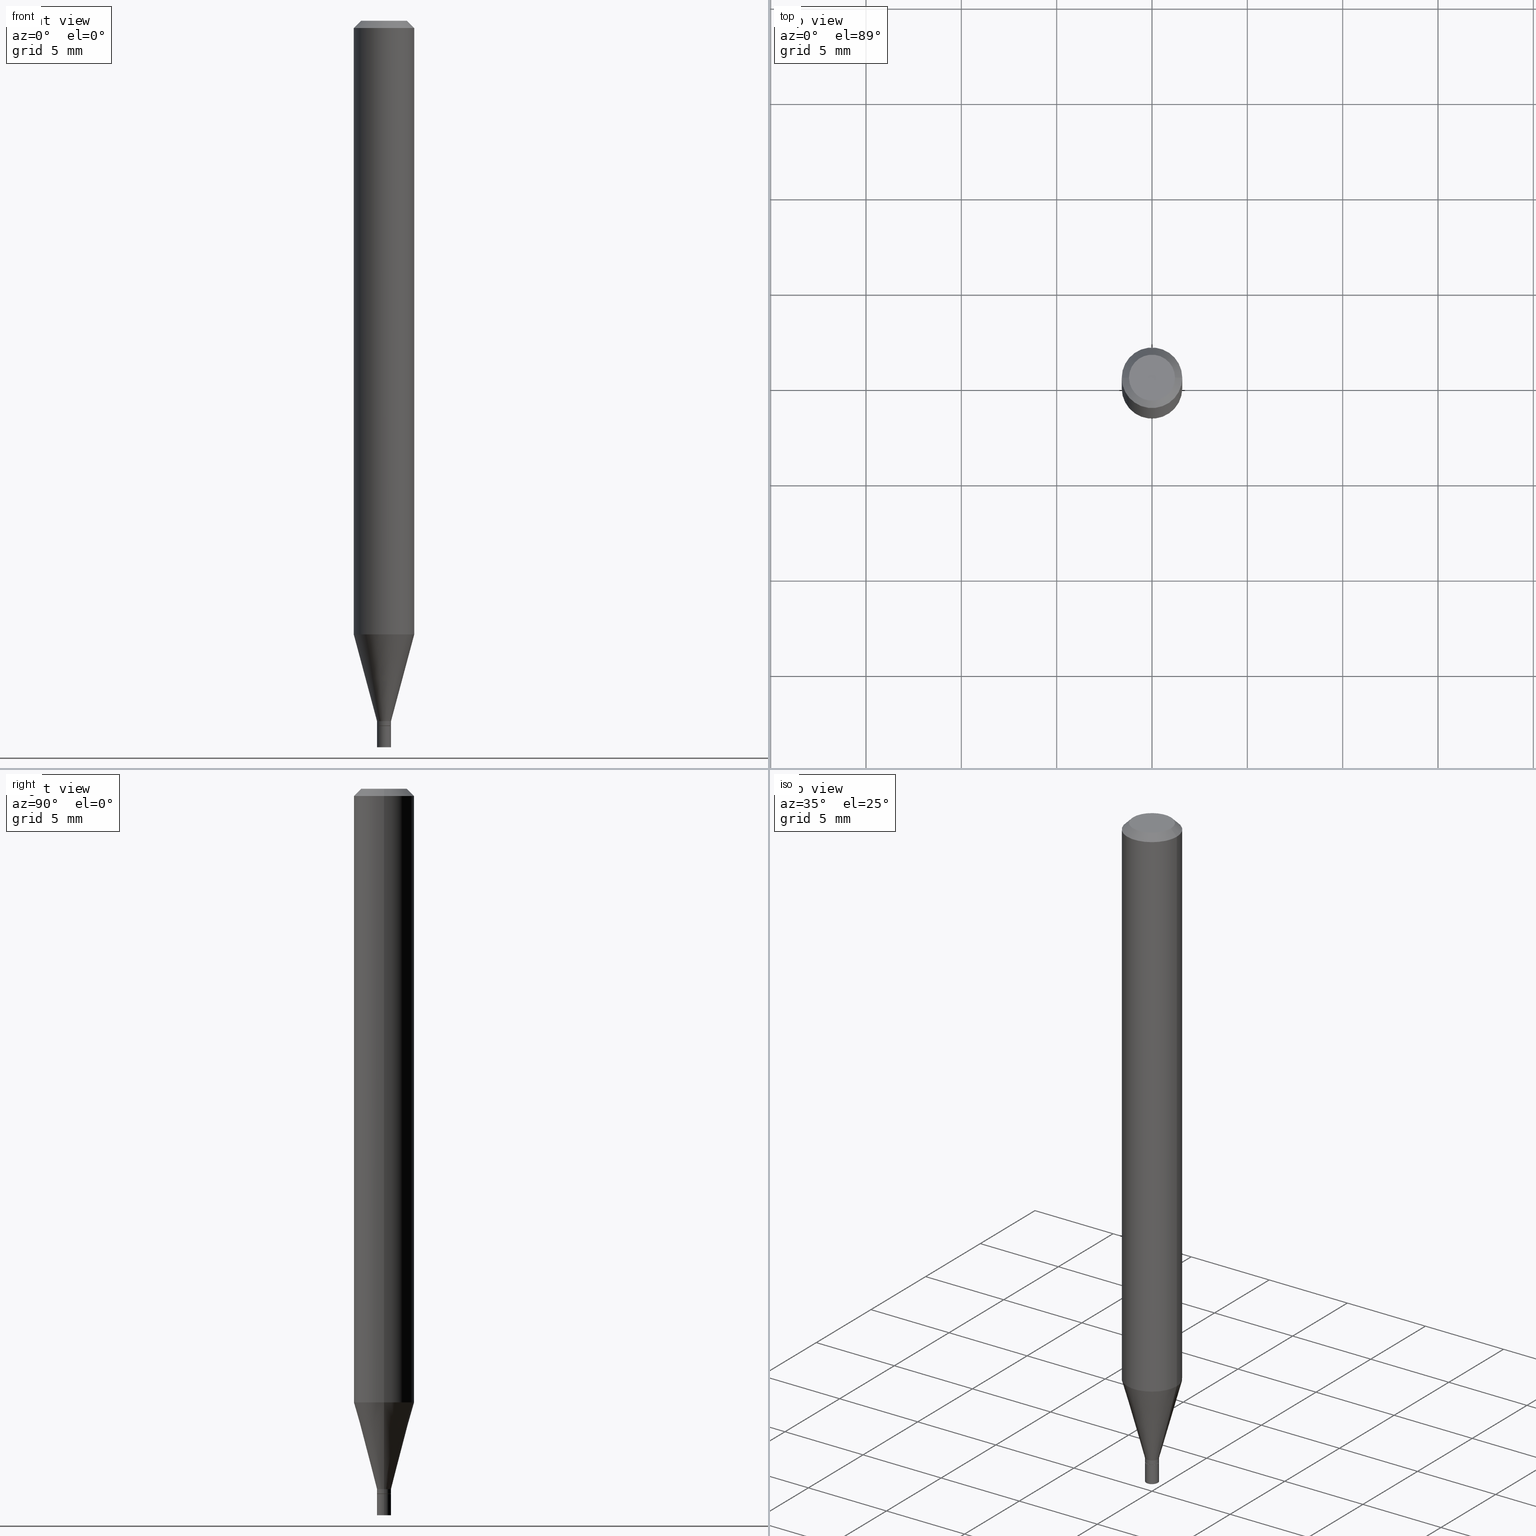
[diagram: canonical four-view strip — front | top / right | iso, engineering-drawing reading convention]
A machine part, canonical four-view strip (front | top / right | iso — engineering-drawing reading convention). The complete STEP part file that produces these views, byte-faithful:
ISO-10303-21;
HEADER;
FILE_DESCRIPTION (( 'STEP AP203' ),
    '1' );
FILE_NAME ('02225.STEP',
    '2024-03-18T19:55:15',
    ( '' ),
    ( '' ),
    'SwSTEP 2.0',
    'SolidWorks 2023',
    '' );
FILE_SCHEMA (( 'CONFIG_CONTROL_DESIGN' ));
ENDSEC;

DATA;
#1 = EDGE_CURVE ( 'NONE', #181, #290, #130, .T. ) ;
#2 = FACE_OUTER_BOUND ( 'NONE', #434, .T. ) ;
#3 = ORIENTED_EDGE ( 'NONE', *, *, #395, .T. ) ;
#4 = VECTOR ( 'NONE', #201, 39.37007874015748143 ) ;
#5 = AXIS2_PLACEMENT_3D ( 'NONE', #179, #109, #399 ) ;
#6 = DIRECTION ( 'NONE',  ( 2.445468806185136597E-29, -3.491481338843145583E-15, -1.000000000000000000 ) ) ;
#7 = EDGE_CURVE ( 'NONE', #151, #396, #264, .T. ) ;
#8 = ORIENTED_EDGE ( 'NONE', *, *, #374, .T. ) ;
#9 = ORIENTED_EDGE ( 'NONE', *, *, #403, .F. ) ;
#10 = CLOSED_SHELL ( 'NONE', ( #262, #256, #313, #371, #184, #210, #101, #38, #50, #293, #15, #430 ) ) ;
#11 = PERSON_AND_ORGANIZATION_ROLE ( 'design_owner' ) ;
#12 = CC_DESIGN_APPROVAL ( #324, ( #415 ) ) ;
#13 = VERTEX_POINT ( 'NONE', #315 ) ;
#14 = EDGE_LOOP ( 'NONE', ( #44, #155, #292, #115 ) ) ;
#15 = ADVANCED_FACE ( 'NONE', ( #37 ), #333, .T. ) ;
#16 = ORIENTED_EDGE ( 'NONE', *, *, #147, .F. ) ;
#17 = VECTOR ( 'NONE', #73, 39.37007874015748143 ) ;
#18 = EDGE_CURVE ( 'NONE', #13, #294, #223, .T. ) ;
#19 = DIRECTION ( 'NONE',  ( 1.000000000000000000, -6.982962677686262766E-15, 0.000000000000000000 ) ) ;
#20 = DIRECTION ( 'NONE',  ( -0.7071067811865542341, 2.468850131082328058E-15, -0.7071067811865405783 ) ) ;
#21 = DIRECTION ( 'NONE',  ( -2.445468806185136877E-29, 3.491481338843145188E-15, 1.000000000000000000 ) ) ;
#22 = CARTESIAN_POINT ( 'NONE',  ( 3.668203209277705088E-31, -5.237222008264718399E-17, -0.01499999999999999944 ) ) ;
#23 = VECTOR ( 'NONE', #27, 39.37007874015748143 ) ;
#24 = CIRCLE ( 'NONE', #150, 0.01449999999999992441 ) ;
#25 = FACE_OUTER_BOUND ( 'NONE', #422, .T. ) ;
#26 = DIRECTION ( 'NONE',  ( 1.000000000000000000, -6.982962677686269077E-15, 0.000000000000000000 ) ) ;
#27 = DIRECTION ( 'NONE',  ( -0.7071067811865642261, 7.493145998870414114E-15, 0.7071067811865309194 ) ) ;
#28 = ORIENTED_EDGE ( 'NONE', *, *, #384, .T. ) ;
#29 = FACE_OUTER_BOUND ( 'NONE', #402, .T. ) ;
#30 = ORIENTED_EDGE ( 'NONE', *, *, #178, .T. ) ;
#31 = ORIENTED_EDGE ( 'NONE', *, *, #53, .T. ) ;
#32 = CARTESIAN_POINT ( 'NONE',  ( 3.536147893743707559E-29, -5.048682015967188692E-15, -1.446000000000000174 ) ) ;
#33 = DIRECTION ( 'NONE',  ( 1.000000000000000000, -6.982962677686267499E-15, 4.852736867747366768E-29 ) ) ;
#34 = AXIS2_PLACEMENT_3D ( 'NONE', #32, #302, #230 ) ;
#35 = CARTESIAN_POINT ( 'NONE',  ( 3.560602581805559105E-29, -5.083596829355621130E-15, -1.456000000000000183 ) ) ;
#36 = AXIS2_PLACEMENT_3D ( 'NONE', #62, #136, #236 ) ;
#37 = FACE_OUTER_BOUND ( 'NONE', #14, .T. ) ;
#38 = ADVANCED_FACE ( 'NONE', ( #106 ), #118, .T. ) ;
#39 = CARTESIAN_POINT ( 'NONE',  ( 0.000000000000000000, 0.000000000000000000, 0.000000000000000000 ) ) ;
#40 = VERTEX_POINT ( 'NONE', #387 ) ;
#41 = EDGE_CURVE ( 'NONE', #141, #320, #372, .T. ) ;
#42 = VECTOR ( 'NONE', #90, 39.37007874015748143 ) ;
#43 = CC_DESIGN_APPROVAL ( #113, ( #411 ) ) ;
#44 = ORIENTED_EDGE ( 'NONE', *, *, #122, .F. ) ;
#45 = PERSON_AND_ORGANIZATION ( #138, #86 ) ;
#46 = ORIENTED_EDGE ( 'NONE', *, *, #74, .F. ) ;
#47 = DIRECTION ( 'NONE',  ( -1.000000000000000000, 6.982962677686265922E-15, -4.876176775795935793E-29 ) ) ;
#48 = DATE_AND_TIME ( #121, #180 ) ;
#49 = EDGE_LOOP ( 'NONE', ( #361, #80, #437, #219 ) ) ;
#50 = ADVANCED_FACE ( 'NONE', ( #71 ), #76, .F. ) ;
#51 = ORIENTED_EDGE ( 'NONE', *, *, #395, .F. ) ;
#52 = ORIENTED_EDGE ( 'NONE', *, *, #213, .T. ) ;
#53 = EDGE_CURVE ( 'NONE', #40, #117, #134, .T. ) ;
#54 = PRODUCT_DEFINITION_SHAPE ( 'NONE', 'NONE',  #65 ) ;
#55 = PERSON_AND_ORGANIZATION ( #138, #86 ) ;
#56 = CIRCLE ( 'NONE', #392, 0.01449999999999992441 ) ;
#57 = CIRCLE ( 'NONE', #319, 0.01449999999999992441 ) ;
#58 = CARTESIAN_POINT ( 'NONE',  ( 3.098070429759336383E-29, -4.423223499955610282E-15, -1.266861561236694023 ) ) ;
#59 = DIRECTION ( 'NONE',  ( 1.000000000000000000, -6.982962677686269077E-15, 0.000000000000000000 ) ) ;
#60 = DIRECTION ( 'NONE',  ( 1.000000000000000000, -6.982962677686299054E-15, 0.000000000000000000 ) ) ;
#61 = DIRECTION ( 'NONE',  ( 1.000000000000000000, -6.982962677686262766E-15, 0.000000000000000000 ) ) ;
#62 = CARTESIAN_POINT ( 'NONE',  ( 3.560602581805559105E-29, -5.083596829355621130E-15, -1.456000000000000183 ) ) ;
#63 = CARTESIAN_POINT ( 'NONE',  ( -0.01400000000000000203, -4.984120846349207015E-15, -1.456000000000000183 ) ) ;
#64 = AXIS2_PLACEMENT_3D ( 'NONE', #247, #153, #19 ) ;
#65 = PRODUCT_DEFINITION ( 'UNKNOWN', '', #411, #304 ) ;
#66 = AXIS2_PLACEMENT_3D ( 'NONE', #98, #69, #388 ) ;
#67 = CARTESIAN_POINT ( 'NONE',  ( 0.01449999999999992441, -1.012529588264503378E-16, 7.070456324904069450E-31 ) ) ;
#68 = DIRECTION ( 'NONE',  ( -2.445468806185136597E-29, 3.491481338843145583E-15, 1.000000000000000000 ) ) ;
#69 = DIRECTION ( 'NONE',  ( -2.445468806185136597E-29, 3.491481338843145583E-15, 1.000000000000000000 ) ) ;
#70 = DIRECTION ( 'NONE',  ( 1.000000000000000000, -6.982962677686266711E-15, 0.000000000000000000 ) ) ;
#71 = FACE_OUTER_BOUND ( 'NONE', #407, .T. ) ;
#72 = FACE_OUTER_BOUND ( 'NONE', #191, .T. ) ;
#73 = DIRECTION ( 'NONE',  ( 0.2588190451025211281, 1.565188264969623940E-15, 0.9659258262890682012 ) ) ;
#74 = EDGE_CURVE ( 'NONE', #185, #331, #460, .T. ) ;
#75 = DIRECTION ( 'NONE',  ( 0.000000000000000000, 0.000000000000000000, 1.000000000000000000 ) ) ;
#76 = PLANE ( 'NONE',  #224 ) ;
#77 = CYLINDRICAL_SURFACE ( 'NONE', #209, 0.01450000000000000074 ) ;
#78 = EDGE_LOOP ( 'NONE', ( #31, #441, #51, #281 ) ) ;
#79 = AXIS2_PLACEMENT_3D ( 'NONE', #58, #309, #193 ) ;
#80 = ORIENTED_EDGE ( 'NONE', *, *, #449, .T. ) ;
#81 = PLANE ( 'NONE',  #260 ) ;
#82 = APPROVAL_DATE_TIME ( #253, #113 ) ;
#83 = EDGE_LOOP ( 'NONE', ( #187, #405 ) ) ;
#84 = EDGE_CURVE ( 'NONE', #151, #331, #303, .T. ) ;
#85 = EDGE_LOOP ( 'NONE', ( #329, #321, #326, #241 ) ) ;
#86 = ORGANIZATION ( 'UNSPECIFIED', 'UNSPECIFIED', '' ) ;
#87 = ORIENTED_EDGE ( 'NONE', *, *, #213, .F. ) ;
#88 = PERSON_AND_ORGANIZATION_ROLE ( 'creator' ) ;
#89 = LOCAL_TIME ( 15, 55, 15.00000000000000000, #119 ) ;
#90 = DIRECTION ( 'NONE',  ( -2.445468806185136877E-29, 3.491481338843145188E-15, 1.000000000000000000 ) ) ;
#91 = CARTESIAN_POINT ( 'NONE',  ( -0.01400000000000000203, -4.981471619175095814E-15, -1.456000000000000183 ) ) ;
#92 = DIRECTION ( 'NONE',  ( 1.000000000000000000, -6.982962677686266711E-15, 4.876176775795935793E-29 ) ) ;
#93 = EDGE_CURVE ( 'NONE', #245, #457, #259, .T. ) ;
#94 = CARTESIAN_POINT ( 'NONE',  ( 3.668203209277705088E-31, -5.237222008264718399E-17, -0.01499999999999999944 ) ) ;
#95 = DIRECTION ( 'NONE',  ( 1.000000000000000000, -6.982962677686266711E-15, 4.876176775795935793E-29 ) ) ;
#96 = CARTESIAN_POINT ( 'NONE',  ( 0.01400000000000000203, -5.181358306843228485E-15, -1.456000000000000183 ) ) ;
#97 = VECTOR ( 'NONE', #165, 39.37007874015748143 ) ;
#98 = CARTESIAN_POINT ( 'NONE',  ( 3.560602581805559105E-29, -5.083596829355621130E-15, -1.456000000000000183 ) ) ;
#99 = DIRECTION ( 'NONE',  ( -2.445468806185136597E-29, 3.491481338843145583E-15, 1.000000000000000000 ) ) ;
#100 = DIRECTION ( 'NONE',  ( 1.000000000000000000, -6.982962677686269077E-15, 0.000000000000000000 ) ) ;
#101 = ADVANCED_FACE ( 'NONE', ( #459 ), #128, .T. ) ;
#102 = CARTESIAN_POINT ( 'NONE',  ( 0.01400000000000000203, -5.181358306843228485E-15, -1.456000000000000183 ) ) ;
#103 = CARTESIAN_POINT ( 'NONE',  ( -0.01449999999999992441, -4.945653319281974468E-15, -1.446000000000000174 ) ) ;
#104 = CARTESIAN_POINT ( 'NONE',  ( 0.04749999999999999362, -4.035134999187584047E-16, -2.863788329398937336E-16 ) ) ;
#105 = CARTESIAN_POINT ( 'NONE',  ( -0.06250000000000000000, -3.979134290105546877E-15, -1.266861561236694023 ) ) ;
#106 = FACE_OUTER_BOUND ( 'NONE', #162, .T. ) ;
#107 = AXIS2_PLACEMENT_3D ( 'NONE', #340, #376, #61 ) ;
#108 = ORIENTED_EDGE ( 'NONE', *, *, #93, .T. ) ;
#109 = DIRECTION ( 'NONE',  ( -2.438088387897960049E-29, 3.491481338843145188E-15, 1.000000000000000000 ) ) ;
#110 = ORIENTED_EDGE ( 'NONE', *, *, #154, .T. ) ;
#111 = CALENDAR_DATE ( 2024, 18, 3 ) ;
#112 = ORIENTED_EDGE ( 'NONE', *, *, #338, .F. ) ;
#113 = APPROVAL ( #440, 'UNSPECIFIED' ) ;
#114 = APPROVAL_DATE_TIME ( #327, #324 ) ;
#115 = ORIENTED_EDGE ( 'NONE', *, *, #384, .F. ) ;
#116 = PERSON_AND_ORGANIZATION ( #138, #86 ) ;
#117 = VERTEX_POINT ( 'NONE', #419 ) ;
#118 = CONICAL_SURFACE ( 'NONE', #400, 0.06250000000000000000, 0.7853981633974579379 ) ;
#119 = COORDINATED_UNIVERSAL_TIME_OFFSET ( 5, 0, .BEHIND. ) ;
#120 = AXIS2_PLACEMENT_3D ( 'NONE', #418, #389, #428 ) ;
#121 = CALENDAR_DATE ( 2024, 18, 3 ) ;
#122 = EDGE_CURVE ( 'NONE', #254, #190, #137, .T. ) ;
#123 = APPROVAL_ROLE ( '' ) ;
#124 = PRODUCT ( '02225', '02225', '', ( #203 ) ) ;
#125 = DIRECTION ( 'NONE',  ( -2.445468806185136597E-29, 3.491481338843145583E-15, 1.000000000000000000 ) ) ;
#126 = APPROVAL_PERSON_ORGANIZATION ( #330, #226, #443 ) ;
#127 = CARTESIAN_POINT ( 'NONE',  ( 3.536147893743707559E-29, -5.048682015967188692E-15, -1.446000000000000174 ) ) ;
#128 = CYLINDRICAL_SURFACE ( 'NONE', #353, 0.06250000000000000000 ) ;
#129 = CARTESIAN_POINT ( 'NONE',  ( -0.06250000000000000000, -1.793708650169066262E-15, -0.01499999999999999944 ) ) ;
#130 = LINE ( 'NONE', #96, #272 ) ;
#131 = CARTESIAN_POINT ( 'NONE',  ( 0.000000000000000000, 0.000000000000000000, 0.000000000000000000 ) ) ;
#132 = ORIENTED_EDGE ( 'NONE', *, *, #364, .F. ) ;
#133 = EDGE_CURVE ( 'NONE', #294, #13, #56, .T. ) ;
#134 = CIRCLE ( 'NONE', #410, 0.01450000000000000074 ) ;
#135 = CARTESIAN_POINT ( 'NONE',  ( 0.000000000000000000, 0.000000000000000000, 0.000000000000000000 ) ) ;
#136 = DIRECTION ( 'NONE',  ( -2.445468806185136597E-29, 3.491481338843145583E-15, 1.000000000000000000 ) ) ;
#137 = LINE ( 'NONE', #63, #23 ) ;
#138 = PERSON ( 'UNSPECIFIED', 'UNSPECIFIED', 'UNSPECIFIED', ('UNSPECIFIED'), ('UNSPECIFIED'), ('UNSPECIFIED') ) ;
#139 = PERSON_AND_ORGANIZATION ( #138, #86 ) ;
#140 = ORIENTED_EDGE ( 'NONE', *, *, #160, .F. ) ;
#141 = VERTEX_POINT ( 'NONE', #104 ) ;
#142 = CIRCLE ( 'NONE', #359, 0.04749999999999999362 ) ;
#143 = LOCAL_TIME ( 15, 55, 15.00000000000000000, #448 ) ;
#144 = CC_DESIGN_PERSON_AND_ORGANIZATION_ASSIGNMENT ( #55, #88, ( #65 ) ) ;
#145 = ORIENTED_EDGE ( 'NONE', *, *, #18, .F. ) ;
#146 = CALENDAR_DATE ( 2024, 18, 3 ) ;
#147 = EDGE_CURVE ( 'NONE', #320, #141, #142, .T. ) ;
#148 = ORIENTED_EDGE ( 'NONE', *, *, #228, .F. ) ;
#149 = VECTOR ( 'NONE', #161, 39.37007874015748143 ) ;
#150 = AXIS2_PLACEMENT_3D ( 'NONE', #215, #220, #26 ) ;
#151 = VERTEX_POINT ( 'NONE', #105 ) ;
#152 = ORIENTED_EDGE ( 'NONE', *, *, #41, .T. ) ;
#153 = DIRECTION ( 'NONE',  ( -2.445468806185136597E-29, 3.491481338843145583E-15, 1.000000000000000000 ) ) ;
#154 = EDGE_CURVE ( 'NONE', #181, #254, #450, .T. ) ;
#155 = ORIENTED_EDGE ( 'NONE', *, *, #269, .T. ) ;
#156 = CONICAL_SURFACE ( 'NONE', #296, 0.01449999999999992441, 0.2617993877991497964 ) ;
#157 = CIRCLE ( 'NONE', #36, 0.01450000000000000074 ) ;
#158 = DIMENSIONAL_EXPONENTS ( 1.000000000000000000, 0.000000000000000000, 0.000000000000000000, 0.000000000000000000, 0.000000000000000000, 0.000000000000000000, 0.000000000000000000 ) ;
#159 = CARTESIAN_POINT ( 'NONE',  ( 0.06250000000000000000, -4.888073874380388472E-16, -0.01499999999999999944 ) ) ;
#160 = EDGE_CURVE ( 'NONE', #320, #331, #379, .T. ) ;
#161 = DIRECTION ( 'NONE',  ( -2.445468806185136877E-29, 3.491481338843145188E-15, 1.000000000000000000 ) ) ;
#162 = EDGE_LOOP ( 'NONE', ( #258, #16, #362, #8 ) ) ;
#163 = AXIS2_PLACEMENT_3D ( 'NONE', #425, #381, #199 ) ;
#164 = FACE_OUTER_BOUND ( 'NONE', #337, .T. ) ;
#165 = DIRECTION ( 'NONE',  ( -2.445468806185136877E-29, 3.491481338843145188E-15, 1.000000000000000000 ) ) ;
#166 = CARTESIAN_POINT ( 'NONE',  ( 3.098070429759336383E-29, -4.423223499955610282E-15, -1.266861561236694023 ) ) ;
#167 = APPLICATION_CONTEXT ( 'configuration controlled 3d designs of mechanical parts and assemblies' ) ;
#168 =( NAMED_UNIT ( * ) SI_UNIT ( $, .STERADIAN. ) SOLID_ANGLE_UNIT ( ) );
#169 = DIRECTION ( 'NONE',  ( -1.000000000000000000, 6.982962677686265922E-15, -4.876176775795935793E-29 ) ) ;
#170 = CARTESIAN_POINT ( 'NONE',  ( 3.316907271900976096E-16, 0.04749999999999999362, -3.090347800649974958E-16 ) ) ;
#171 = VECTOR ( 'NONE', #265, 39.37007874015748143 ) ;
#172 = VECTOR ( 'NONE', #21, 39.37007874015748143 ) ;
#173 = DIRECTION ( 'NONE',  ( -2.438088387897960049E-29, 3.491481338843145188E-15, 1.000000000000000000 ) ) ;
#174 = CARTESIAN_POINT ( 'NONE',  ( 3.559379847402467424E-29, -5.081851088686199626E-15, -1.455500000000000460 ) ) ;
#175 =( CONVERSION_BASED_UNIT ( 'INCH', #343 ) LENGTH_UNIT ( ) NAMED_UNIT ( #158 ) );
#176 = ORIENTED_EDGE ( 'NONE', *, *, #338, .T. ) ;
#177 = CARTESIAN_POINT ( 'NONE',  ( -0.01450000000000000074, 1.030286966852145322E-16, -7.132455880869613131E-31 ) ) ;
#178 = EDGE_CURVE ( 'NONE', #290, #294, #300, .T. ) ;
#179 = CARTESIAN_POINT ( 'NONE',  ( 3.576687321579069994E-29, -5.368277968210015545E-15, -1.500000000000000222 ) ) ;
#180 = LOCAL_TIME ( 15, 55, 15.00000000000000000, #323 ) ;
#181 = VERTEX_POINT ( 'NONE', #102 ) ;
#182 = PERSON_AND_ORGANIZATION_ROLE ( 'classification_officer' ) ;
#183 = FACE_OUTER_BOUND ( 'NONE', #439, .T. ) ;
#184 = ADVANCED_FACE ( 'NONE', ( #164 ), #156, .T. ) ;
#185 = VERTEX_POINT ( 'NONE', #159 ) ;
#186 = SECURITY_CLASSIFICATION_LEVEL ( 'unclassified' ) ;
#187 = ORIENTED_EDGE ( 'NONE', *, *, #53, .F. ) ;
#188 = AXIS2_PLACEMENT_3D ( 'NONE', #466, #237, #344 ) ;
#189 = CALENDAR_DATE ( 2024, 18, 3 ) ;
#190 = VERTEX_POINT ( 'NONE', #305 ) ;
#191 = EDGE_LOOP ( 'NONE', ( #249, #248 ) ) ;
#192 = DATE_AND_TIME ( #289, #143 ) ;
#193 = DIRECTION ( 'NONE',  ( 1.000000000000000000, -6.982962677686262766E-15, 0.000000000000000000 ) ) ;
#194 = EDGE_CURVE ( 'NONE', #40, #457, #263, .T. ) ;
#195 = DIRECTION ( 'NONE',  ( -2.445468806185136597E-29, 3.491481338843145583E-15, 1.000000000000000000 ) ) ;
#196 = DIRECTION ( 'NONE',  ( -2.445468806185136597E-29, 3.491481338843145583E-15, 1.000000000000000000 ) ) ;
#197 = VECTOR ( 'NONE', #243, 39.37007874015748143 ) ;
#198 = DIRECTION ( 'NONE',  ( -1.000000000000000000, 6.982962677686266711E-15, 0.000000000000000000 ) ) ;
#199 = DIRECTION ( 'NONE',  ( 1.000000000000000000, -6.982962677686266711E-15, 4.876176775795935793E-29 ) ) ;
#200 =( NAMED_UNIT ( * ) PLANE_ANGLE_UNIT ( ) SI_UNIT ( $, .RADIAN. ) );
#201 = DIRECTION ( 'NONE',  ( -2.445468806185136877E-29, 3.491481338843145188E-15, 1.000000000000000000 ) ) ;
#202 = LINE ( 'NONE', #268, #17 ) ;
#203 = MECHANICAL_CONTEXT ( 'NONE', #167, 'mechanical' ) ;
#204 = CARTESIAN_POINT ( 'NONE',  ( 0.000000000000000000, 0.000000000000000000, 0.000000000000000000 ) ) ;
#205 = CARTESIAN_POINT ( 'NONE',  ( 0.01449999999999992441, -5.183104047512649988E-15, -1.455500000000000460 ) ) ;
#206 = CARTESIAN_POINT ( 'NONE',  ( 0.06250000000000000000, -4.364351673553916694E-16, 3.047610484872459871E-30 ) ) ;
#207 = DIRECTION ( 'NONE',  ( 1.000000000000000000, 0.000000000000000000, 0.000000000000000000 ) ) ;
#208 = DIRECTION ( 'NONE',  ( 1.000000000000000000, -6.982962677686266711E-15, 4.876176775795935793E-29 ) ) ;
#209 = AXIS2_PLACEMENT_3D ( 'NONE', #421, #456, #95 ) ;
#210 = ADVANCED_FACE ( 'NONE', ( #29 ), #435, .T. ) ;
#211 = ORIENTED_EDGE ( 'NONE', *, *, #364, .T. ) ;
#212 = CIRCLE ( 'NONE', #461, 0.06250000000000000000 ) ;
#213 = EDGE_CURVE ( 'NONE', #190, #13, #238, .T. ) ;
#214 = ORIENTED_EDGE ( 'NONE', *, *, #18, .T. ) ;
#215 = CARTESIAN_POINT ( 'NONE',  ( 3.559379847402467424E-29, -5.081851088686199626E-15, -1.455500000000000460 ) ) ;
#216 = CARTESIAN_POINT ( 'NONE',  ( 1.012529588264864651E-16, 0.01449999999999491626, -1.456000000000000183 ) ) ;
#217 = ADVANCED_BREP_SHAPE_REPRESENTATION ( '02225', ( #398, #246, #229 ), #341 ) ;
#218 = PERSON_AND_ORGANIZATION ( #138, #86 ) ;
#219 = ORIENTED_EDGE ( 'NONE', *, *, #93, .F. ) ;
#220 = DIRECTION ( 'NONE',  ( -2.445468806185136597E-29, 3.491481338843145583E-15, 1.000000000000000000 ) ) ;
#221 = PERSON_AND_ORGANIZATION ( #138, #86 ) ;
#222 = EDGE_LOOP ( 'NONE', ( #110, #370, #132, #350 ) ) ;
#223 = CIRCLE ( 'NONE', #244, 0.01449999999999992441 ) ;
#224 = AXIS2_PLACEMENT_3D ( 'NONE', #170, #375, #169 ) ;
#225 = AXIS2_PLACEMENT_3D ( 'NONE', #131, #271, #385 ) ;
#226 = APPROVAL ( #328, 'UNSPECIFIED' ) ;
#227 = ORIENTED_EDGE ( 'NONE', *, *, #178, .F. ) ;
#228 = EDGE_CURVE ( 'NONE', #396, #151, #414, .T. ) ;
#229 = AXIS2_PLACEMENT_3D ( 'NONE', #426, #75, #207 ) ;
#230 = DIRECTION ( 'NONE',  ( 1.000000000000000000, -6.982962677686269077E-15, 0.000000000000000000 ) ) ;
#231 = FACE_OUTER_BOUND ( 'NONE', #222, .T. ) ;
#232 = DIRECTION ( 'NONE',  ( -2.445468806185136597E-29, 3.491481338843145583E-15, 1.000000000000000000 ) ) ;
#233 = CC_DESIGN_DATE_AND_TIME_ASSIGNMENT ( #322, #438, ( #415 ) ) ;
#234 = LOCAL_TIME ( 15, 55, 15.00000000000000000, #436 ) ;
#235 = CARTESIAN_POINT ( 'NONE',  ( 7.003305027062207074E-45, -9.998863510493265527E-31, -2.863788329398962481E-16 ) ) ;
#236 = DIRECTION ( 'NONE',  ( 1.000000000000000000, -6.982962677686299054E-15, 0.000000000000000000 ) ) ;
#237 = DIRECTION ( 'NONE',  ( -2.445468806185136597E-29, 3.491481338843145583E-15, 1.000000000000000000 ) ) ;
#238 = LINE ( 'NONE', #451, #171 ) ;
#239 = DIRECTION ( 'NONE',  ( -2.445468806185136597E-29, 3.491481338843145583E-15, 1.000000000000000000 ) ) ;
#240 = DIRECTION ( 'NONE',  ( 1.000000000000000000, -6.982962677686266711E-15, 0.000000000000000000 ) ) ;
#241 = ORIENTED_EDGE ( 'NONE', *, *, #374, .F. ) ;
#242 = PRODUCT_RELATED_PRODUCT_CATEGORY ( 'detail', '', ( #124 ) ) ;
#243 = DIRECTION ( 'NONE',  ( -0.2588190451025211281, 5.211531920934548675E-15, 0.9659258262890682012 ) ) ;
#244 = AXIS2_PLACEMENT_3D ( 'NONE', #429, #308, #270 ) ;
#245 = VERTEX_POINT ( 'NONE', #417 ) ;
#246 = MANIFOLD_SOLID_BREP ( 'Body-Move/Copy2[2]', #10 ) ;
#247 = CARTESIAN_POINT ( 'NONE',  ( 3.560602581805559105E-29, -5.083596829355621130E-15, -1.456000000000000183 ) ) ;
#248 = ORIENTED_EDGE ( 'NONE', *, *, #269, .F. ) ;
#249 = ORIENTED_EDGE ( 'NONE', *, *, #154, .F. ) ;
#250 = AXIS2_PLACEMENT_3D ( 'NONE', #267, #348, #464 ) ;
#251 = ORIENTED_EDGE ( 'NONE', *, *, #133, .F. ) ;
#252 = COORDINATED_UNIVERSAL_TIME_OFFSET ( 5, 0, .BEHIND. ) ;
#253 = DATE_AND_TIME ( #111, #234 ) ;
#254 = VERTEX_POINT ( 'NONE', #91 ) ;
#255 = ORIENTED_EDGE ( 'NONE', *, *, #74, .T. ) ;
#256 = ADVANCED_FACE ( 'NONE', ( #231 ), #334, .T. ) ;
#257 = APPLICATION_PROTOCOL_DEFINITION ( 'international standard', 'config_control_design', 1994, #355 ) ;
#258 = ORIENTED_EDGE ( 'NONE', *, *, #349, .F. ) ;
#259 = CIRCLE ( 'NONE', #250, 0.01450000000000000074 ) ;
#260 = AXIS2_PLACEMENT_3D ( 'NONE', #216, #363, #47 ) ;
#261 = PERSON_AND_ORGANIZATION_ROLE ( 'design_supplier' ) ;
#262 = ADVANCED_FACE ( 'NONE', ( #25 ), #454, .T. ) ;
#263 = LINE ( 'NONE', #345, #42 ) ;
#264 = CIRCLE ( 'NONE', #325, 0.06250000000000000000 ) ;
#265 = DIRECTION ( 'NONE',  ( -2.445468806185136877E-29, 3.491481338843145188E-15, 1.000000000000000000 ) ) ;
#266 = LINE ( 'NONE', #103, #197 ) ;
#267 = CARTESIAN_POINT ( 'NONE',  ( 3.560602581805559105E-29, -5.083596829355621130E-15, -1.456000000000000183 ) ) ;
#268 = CARTESIAN_POINT ( 'NONE',  ( 0.01449999999999992441, -5.149934974793639054E-15, -1.446000000000000174 ) ) ;
#269 = EDGE_CURVE ( 'NONE', #254, #181, #369, .T. ) ;
#270 = DIRECTION ( 'NONE',  ( 1.000000000000000000, -6.982962677686269077E-15, 0.000000000000000000 ) ) ;
#271 = DIRECTION ( 'NONE',  ( -2.445468806185136597E-29, 3.491481338843145583E-15, 1.000000000000000000 ) ) ;
#272 = VECTOR ( 'NONE', #378, 39.37007874015748143 ) ;
#273 = CIRCLE ( 'NONE', #120, 0.01450000000000000074 ) ;
#274 = ORIENTED_EDGE ( 'NONE', *, *, #147, .T. ) ;
#275 = CARTESIAN_POINT ( 'NONE',  ( -0.06250000000000000000, 3.840629472727444916E-16, -0.01499999999999999944 ) ) ;
#276 = FACE_OUTER_BOUND ( 'NONE', #282, .T. ) ;
#277 =( LENGTH_UNIT ( ) NAMED_UNIT ( * ) SI_UNIT ( $, .METRE. ) );
#278 = CARTESIAN_POINT ( 'NONE',  ( 3.536147893743707559E-29, -5.048682015967188692E-15, -1.446000000000000174 ) ) ;
#279 = CC_DESIGN_PERSON_AND_ORGANIZATION_ASSIGNMENT ( #139, #11, ( #124 ) ) ;
#280 = DIRECTION ( 'NONE',  ( 1.000000000000000000, -6.982962677686267499E-15, 4.852736867747366768E-29 ) ) ;
#281 = ORIENTED_EDGE ( 'NONE', *, *, #194, .F. ) ;
#282 = EDGE_LOOP ( 'NONE', ( #357, #295, #46, #446 ) ) ;
#283 = AXIS2_PLACEMENT_3D ( 'NONE', #235, #195, #33 ) ;
#284 = AXIS2_PLACEMENT_3D ( 'NONE', #135, #196, #92 ) ;
#285 = CC_DESIGN_DATE_AND_TIME_ASSIGNMENT ( #192, #406, ( #65 ) ) ;
#286 = DIRECTION ( 'NONE',  ( 1.000000000000000000, -6.982962677686265922E-15, 4.876176775795935793E-29 ) ) ;
#287 = EDGE_LOOP ( 'NONE', ( #87, #28, #30, #145 ) ) ;
#288 = SHAPE_DEFINITION_REPRESENTATION ( #54, #217 ) ;
#289 = CALENDAR_DATE ( 2024, 18, 3 ) ;
#290 = VERTEX_POINT ( 'NONE', #205 ) ;
#291 = APPROVAL_PERSON_ORGANIZATION ( #298, #324, #123 ) ;
#292 = ORIENTED_EDGE ( 'NONE', *, *, #1, .T. ) ;
#293 = ADVANCED_FACE ( 'NONE', ( #72 ), #351, .F. ) ;
#294 = VERTEX_POINT ( 'NONE', #367 ) ;
#295 = ORIENTED_EDGE ( 'NONE', *, *, #84, .T. ) ;
#296 = AXIS2_PLACEMENT_3D ( 'NONE', #127, #125, #59 ) ;
#297 = LOCAL_TIME ( 15, 55, 15.00000000000000000, #252 ) ;
#298 = PERSON_AND_ORGANIZATION ( #138, #86 ) ;
#299 = ADVANCED_FACE ( 'NONE', ( #432 ), #404, .F. ) ;
#300 = LINE ( 'NONE', #67, #149 ) ;
#301 = DIRECTION ( 'NONE',  ( -1.000000000000000000, 6.982962677686266711E-15, 0.000000000000000000 ) ) ;
#302 = DIRECTION ( 'NONE',  ( -2.445468806185136597E-29, 3.491481338843145583E-15, 1.000000000000000000 ) ) ;
#303 = LINE ( 'NONE', #453, #4 ) ;
#304 = DESIGN_CONTEXT ( 'detailed design', #355, 'design' ) ;
#305 = CARTESIAN_POINT ( 'NONE',  ( -0.01449999999999992441, -4.978822392000985402E-15, -1.455500000000000460 ) ) ;
#306 = ADVANCED_FACE ( 'NONE', ( #183 ), #81, .F. ) ;
#307 = CARTESIAN_POINT ( 'NONE',  ( 0.06250000000000000000, -4.859658667311001952E-15, -1.266861561236694023 ) ) ;
#308 = DIRECTION ( 'NONE',  ( -2.445468806185136597E-29, 3.491481338843145583E-15, 1.000000000000000000 ) ) ;
#309 = DIRECTION ( 'NONE',  ( -2.445468806185136597E-29, 3.491481338843145583E-15, 1.000000000000000000 ) ) ;
#310 = DIRECTION ( 'NONE',  ( 2.445468806185136597E-29, -3.491481338843145583E-15, -1.000000000000000000 ) ) ;
#311 = AXIS2_PLACEMENT_3D ( 'NONE', #39, #239, #377 ) ;
#312 = DIRECTION ( 'NONE',  ( -2.445468806185136597E-29, 3.491481338843145583E-15, 1.000000000000000000 ) ) ;
#313 = ADVANCED_FACE ( 'NONE', ( #2 ), #401, .T. ) ;
#314 = CYLINDRICAL_SURFACE ( 'NONE', #163, 0.06250000000000000000 ) ;
#315 = CARTESIAN_POINT ( 'NONE',  ( -0.01449999999999992441, -4.462393804693759884E-15, -1.446000000000000174 ) ) ;
#316 = ORIENTED_EDGE ( 'NONE', *, *, #133, .T. ) ;
#317 = CARTESIAN_POINT ( 'NONE',  ( 3.668203209277705088E-31, -5.237222008264718399E-17, -0.01499999999999999944 ) ) ;
#318 = AXIS2_PLACEMENT_3D ( 'NONE', #22, #68, #240 ) ;
#319 = AXIS2_PLACEMENT_3D ( 'NONE', #174, #342, #352 ) ;
#320 = VERTEX_POINT ( 'NONE', #458 ) ;
#321 = ORIENTED_EDGE ( 'NONE', *, *, #7, .T. ) ;
#322 = DATE_AND_TIME ( #146, #297 ) ;
#323 = COORDINATED_UNIVERSAL_TIME_OFFSET ( 5, 0, .BEHIND. ) ;
#324 = APPROVAL ( #447, 'UNSPECIFIED' ) ;
#325 = AXIS2_PLACEMENT_3D ( 'NONE', #166, #354, #427 ) ;
#326 = ORIENTED_EDGE ( 'NONE', *, *, #332, .T. ) ;
#327 = DATE_AND_TIME ( #189, #89 ) ;
#328 = APPROVAL_STATUS ( 'not_yet_approved' ) ;
#329 = ORIENTED_EDGE ( 'NONE', *, *, #84, .F. ) ;
#330 = PERSON_AND_ORGANIZATION ( #138, #86 ) ;
#331 = VERTEX_POINT ( 'NONE', #129 ) ;
#332 = EDGE_CURVE ( 'NONE', #396, #185, #462, .T. ) ;
#333 = CONICAL_SURFACE ( 'NONE', #188, 0.01400000000000000203, 0.7853981633974718157 ) ;
#334 = CONICAL_SURFACE ( 'NONE', #107, 0.01400000000000000203, 0.7853981633974718157 ) ;
#335 = APPROVAL_ROLE ( '' ) ;
#336 = CYLINDRICAL_SURFACE ( 'NONE', #284, 0.01450000000000000074 ) ;
#337 = EDGE_LOOP ( 'NONE', ( #316, #365, #148, #112 ) ) ;
#338 = EDGE_CURVE ( 'NONE', #294, #396, #202, .T. ) ;
#339 = CLOSED_SHELL ( 'NONE', ( #455, #299, #358, #306 ) ) ;
#340 = CARTESIAN_POINT ( 'NONE',  ( 3.560602581805559105E-29, -5.083596829355621130E-15, -1.456000000000000183 ) ) ;
#341 =( GEOMETRIC_REPRESENTATION_CONTEXT ( 3 ) GLOBAL_UNCERTAINTY_ASSIGNED_CONTEXT ( ( #366 ) ) GLOBAL_UNIT_ASSIGNED_CONTEXT ( ( #175, #200, #168 ) ) REPRESENTATION_CONTEXT ( 'NONE', 'WORKASPACE' ) );
#342 = DIRECTION ( 'NONE',  ( -2.445468806185136597E-29, 3.491481338843145583E-15, 1.000000000000000000 ) ) ;
#343 = LENGTH_MEASURE_WITH_UNIT ( LENGTH_MEASURE( 0.02539999999999999897 ), #277 );
#344 = DIRECTION ( 'NONE',  ( 1.000000000000000000, -6.982962677686262766E-15, 0.000000000000000000 ) ) ;
#345 = CARTESIAN_POINT ( 'NONE',  ( 0.01450000000000000074, -1.012529588264508678E-16, 7.070456324904107110E-31 ) ) ;
#346 = CARTESIAN_POINT ( 'NONE',  ( 3.668203209277705088E-31, -5.237222008264718399E-17, -0.01499999999999999944 ) ) ;
#347 = CYLINDRICAL_SURFACE ( 'NONE', #311, 0.01449999999999992441 ) ;
#348 = DIRECTION ( 'NONE',  ( -2.445468806185136597E-29, 3.491481338843145583E-15, 1.000000000000000000 ) ) ;
#349 = EDGE_CURVE ( 'NONE', #141, #185, #465, .T. ) ;
#350 = ORIENTED_EDGE ( 'NONE', *, *, #1, .F. ) ;
#351 = PLANE ( 'NONE',  #380 ) ;
#352 = DIRECTION ( 'NONE',  ( 1.000000000000000000, -6.982962677686269077E-15, 0.000000000000000000 ) ) ;
#353 = AXIS2_PLACEMENT_3D ( 'NONE', #204, #232, #208 ) ;
#354 = DIRECTION ( 'NONE',  ( -2.445468806185136597E-29, 3.491481338843145583E-15, 1.000000000000000000 ) ) ;
#355 = APPLICATION_CONTEXT ( 'configuration controlled 3d designs of mechanical parts and assemblies' ) ;
#356 = CARTESIAN_POINT ( 'NONE',  ( 0.01450000000000000074, -5.184849788182072281E-15, -1.456000000000000183 ) ) ;
#357 = ORIENTED_EDGE ( 'NONE', *, *, #228, .T. ) ;
#358 = ADVANCED_FACE ( 'NONE', ( #452 ), #336, .T. ) ;
#359 = AXIS2_PLACEMENT_3D ( 'NONE', #390, #382, #280 ) ;
#360 = APPROVAL_PERSON_ORGANIZATION ( #221, #113, #335 ) ;
#361 = ORIENTED_EDGE ( 'NONE', *, *, #433, .F. ) ;
#362 = ORIENTED_EDGE ( 'NONE', *, *, #160, .T. ) ;
#363 = DIRECTION ( 'NONE',  ( 2.438088387897960049E-29, -3.491481338843145188E-15, -1.000000000000000000 ) ) ;
#364 = EDGE_CURVE ( 'NONE', #290, #190, #57, .T. ) ;
#365 = ORIENTED_EDGE ( 'NONE', *, *, #403, .T. ) ;
#366 = UNCERTAINTY_MEASURE_WITH_UNIT (LENGTH_MEASURE( 1.000000000000000082E-05 ), #175, 'distance_accuracy_value', 'NONE');
#367 = CARTESIAN_POINT ( 'NONE',  ( 0.01449999999999992441, -5.149934974793639054E-15, -1.446000000000000174 ) ) ;
#368 = ORIENTED_EDGE ( 'NONE', *, *, #41, .F. ) ;
#369 = CIRCLE ( 'NONE', #66, 0.01400000000000000203 ) ;
#370 = ORIENTED_EDGE ( 'NONE', *, *, #122, .T. ) ;
#371 = ADVANCED_FACE ( 'NONE', ( #276 ), #314, .T. ) ;
#372 = CIRCLE ( 'NONE', #283, 0.04749999999999999362 ) ;
#373 = CC_DESIGN_APPROVAL ( #226, ( #65 ) ) ;
#374 = EDGE_CURVE ( 'NONE', #331, #185, #212, .T. ) ;
#375 = DIRECTION ( 'NONE',  ( 2.438088387897960049E-29, -3.491481338843145188E-15, -1.000000000000000000 ) ) ;
#376 = DIRECTION ( 'NONE',  ( -2.445468806185136597E-29, 3.491481338843145583E-15, 1.000000000000000000 ) ) ;
#377 = DIRECTION ( 'NONE',  ( 1.000000000000000000, -6.982962677686266711E-15, 4.876176775795935232E-29 ) ) ;
#378 = DIRECTION ( 'NONE',  ( 0.7071067811865642261, -2.468850131082431399E-15, 0.7071067811865309194 ) ) ;
#379 = LINE ( 'NONE', #275, #444 ) ;
#380 = AXIS2_PLACEMENT_3D ( 'NONE', #35, #173, #286 ) ;
#381 = DIRECTION ( 'NONE',  ( -2.445468806185136597E-29, 3.491481338843145583E-15, 1.000000000000000000 ) ) ;
#382 = DIRECTION ( 'NONE',  ( -2.445468806185136597E-29, 3.491481338843145583E-15, 1.000000000000000000 ) ) ;
#383 = CARTESIAN_POINT ( 'NONE',  ( 3.668203209277704895E-29, -5.237222008264718177E-15, -1.500000000000000222 ) ) ;
#384 = EDGE_CURVE ( 'NONE', #190, #290, #24, .T. ) ;
#385 = DIRECTION ( 'NONE',  ( 1.000000000000000000, -6.982962677686266711E-15, 4.876176775795935232E-29 ) ) ;
#386 = FACE_OUTER_BOUND ( 'NONE', #287, .T. ) ;
#387 = CARTESIAN_POINT ( 'NONE',  ( 0.01450000000000000074, -5.338474967091170117E-15, -1.500000000000000222 ) ) ;
#388 = DIRECTION ( 'NONE',  ( 1.000000000000000000, -6.982962677686262766E-15, 0.000000000000000000 ) ) ;
#389 = DIRECTION ( 'NONE',  ( -2.445468806185136597E-29, 3.491481338843145583E-15, 1.000000000000000000 ) ) ;
#390 = CARTESIAN_POINT ( 'NONE',  ( 7.003305027062207074E-45, -9.998863510493265527E-31, -2.863788329398962481E-16 ) ) ;
#391 = DIRECTION ( 'NONE',  ( 0.7071067811865542341, -7.319954787623278133E-15, -0.7071067811865405783 ) ) ;
#392 = AXIS2_PLACEMENT_3D ( 'NONE', #278, #424, #100 ) ;
#393 = LINE ( 'NONE', #177, #97 ) ;
#394 = CC_DESIGN_SECURITY_CLASSIFICATION ( #415, ( #411 ) ) ;
#395 = EDGE_CURVE ( 'NONE', #457, #245, #157, .T. ) ;
#396 = VERTEX_POINT ( 'NONE', #307 ) ;
#397 = ORIENTED_EDGE ( 'NONE', *, *, #349, .T. ) ;
#398 = MANIFOLD_SOLID_BREP ( 'Body-Move/Copy2[1]', #339 ) ;
#399 = DIRECTION ( 'NONE',  ( 1.000000000000000000, -6.982962677686265922E-15, 4.876176775795935793E-29 ) ) ;
#400 = AXIS2_PLACEMENT_3D ( 'NONE', #94, #310, #198 ) ;
#401 = CONICAL_SURFACE ( 'NONE', #445, 0.06250000000000000000, 0.7853981633974579379 ) ;
#402 = EDGE_LOOP ( 'NONE', ( #9, #214, #176, #412 ) ) ;
#403 = EDGE_CURVE ( 'NONE', #13, #151, #266, .T. ) ;
#404 = PLANE ( 'NONE',  #5 ) ;
#405 = ORIENTED_EDGE ( 'NONE', *, *, #449, .F. ) ;
#406 = DATE_TIME_ROLE ( 'creation_date' ) ;
#407 = EDGE_LOOP ( 'NONE', ( #274, #152 ) ) ;
#408 = PERSON_AND_ORGANIZATION_ROLE ( 'creator' ) ;
#409 = CC_DESIGN_PERSON_AND_ORGANIZATION_ASSIGNMENT ( #116, #408, ( #411 ) ) ;
#410 = AXIS2_PLACEMENT_3D ( 'NONE', #383, #312, #60 ) ;
#411 = PRODUCT_DEFINITION_FORMATION_WITH_SPECIFIED_SOURCE ( 'ANY', '', #124, .NOT_KNOWN. ) ;
#412 = ORIENTED_EDGE ( 'NONE', *, *, #7, .F. ) ;
#413 = APPROVAL_DATE_TIME ( #48, #226 ) ;
#414 = CIRCLE ( 'NONE', #79, 0.06250000000000000000 ) ;
#415 = SECURITY_CLASSIFICATION ( '', '', #186 ) ;
#416 = CC_DESIGN_PERSON_AND_ORGANIZATION_ASSIGNMENT ( #218, #261, ( #411 ) ) ;
#417 = CARTESIAN_POINT ( 'NONE',  ( -0.01450000000000000074, -5.057380722124955429E-15, -1.456000000000000183 ) ) ;
#418 = CARTESIAN_POINT ( 'NONE',  ( 3.668203209277704895E-29, -5.237222008264718177E-15, -1.500000000000000222 ) ) ;
#419 = CARTESIAN_POINT ( 'NONE',  ( -0.01450000000000000074, -5.057380722124955429E-15, -1.500000000000000222 ) ) ;
#420 = CARTESIAN_POINT ( 'NONE',  ( 0.06250000000000000000, -4.811533449433679005E-16, -0.01499999999999999944 ) ) ;
#421 = CARTESIAN_POINT ( 'NONE',  ( 0.000000000000000000, 0.000000000000000000, 0.000000000000000000 ) ) ;
#422 = EDGE_LOOP ( 'NONE', ( #211, #52, #251, #227 ) ) ;
#423 = APPLICATION_PROTOCOL_DEFINITION ( 'international standard', 'config_control_design', 1994, #167 ) ;
#424 = DIRECTION ( 'NONE',  ( -2.445468806185136597E-29, 3.491481338843145583E-15, 1.000000000000000000 ) ) ;
#425 = CARTESIAN_POINT ( 'NONE',  ( 0.000000000000000000, 0.000000000000000000, 0.000000000000000000 ) ) ;
#426 = CARTESIAN_POINT ( 'NONE',  ( 0.000000000000000000, 0.000000000000000000, 0.000000000000000000 ) ) ;
#427 = DIRECTION ( 'NONE',  ( 1.000000000000000000, -6.982962677686262766E-15, 0.000000000000000000 ) ) ;
#428 = DIRECTION ( 'NONE',  ( 1.000000000000000000, -6.982962677686299054E-15, 0.000000000000000000 ) ) ;
#429 = CARTESIAN_POINT ( 'NONE',  ( 3.536147893743707559E-29, -5.048682015967188692E-15, -1.446000000000000174 ) ) ;
#430 = ADVANCED_FACE ( 'NONE', ( #386 ), #347, .T. ) ;
#431 = VECTOR ( 'NONE', #391, 39.37007874015748854 ) ;
#432 = FACE_OUTER_BOUND ( 'NONE', #83, .T. ) ;
#433 = EDGE_CURVE ( 'NONE', #117, #245, #393, .T. ) ;
#434 = EDGE_LOOP ( 'NONE', ( #368, #397, #255, #140 ) ) ;
#435 = CONICAL_SURFACE ( 'NONE', #34, 0.01449999999999992441, 0.2617993877991497964 ) ;
#436 = COORDINATED_UNIVERSAL_TIME_OFFSET ( 5, 0, .BEHIND. ) ;
#437 = ORIENTED_EDGE ( 'NONE', *, *, #194, .T. ) ;
#438 = DATE_TIME_ROLE ( 'classification_date' ) ;
#439 = EDGE_LOOP ( 'NONE', ( #3, #108 ) ) ;
#440 = APPROVAL_STATUS ( 'not_yet_approved' ) ;
#441 = ORIENTED_EDGE ( 'NONE', *, *, #433, .T. ) ;
#442 = CC_DESIGN_PERSON_AND_ORGANIZATION_ASSIGNMENT ( #45, #182, ( #415 ) ) ;
#443 = APPROVAL_ROLE ( '' ) ;
#444 = VECTOR ( 'NONE', #20, 39.37007874015748854 ) ;
#445 = AXIS2_PLACEMENT_3D ( 'NONE', #317, #6, #301 ) ;
#446 = ORIENTED_EDGE ( 'NONE', *, *, #332, .F. ) ;
#447 = APPROVAL_STATUS ( 'not_yet_approved' ) ;
#448 = COORDINATED_UNIVERSAL_TIME_OFFSET ( 5, 0, .BEHIND. ) ;
#449 = EDGE_CURVE ( 'NONE', #117, #40, #273, .T. ) ;
#450 = CIRCLE ( 'NONE', #64, 0.01400000000000000203 ) ;
#451 = CARTESIAN_POINT ( 'NONE',  ( -0.01449999999999992441, 1.030286966852139898E-16, -7.132455880869575471E-31 ) ) ;
#452 = FACE_OUTER_BOUND ( 'NONE', #49, .T. ) ;
#453 = CARTESIAN_POINT ( 'NONE',  ( -0.06250000000000000000, 4.440892098500626162E-16, -3.074334431409316114E-30 ) ) ;
#454 = CYLINDRICAL_SURFACE ( 'NONE', #225, 0.01449999999999992441 ) ;
#455 = ADVANCED_FACE ( 'NONE', ( #463 ), #77, .T. ) ;
#456 = DIRECTION ( 'NONE',  ( -2.445468806185136597E-29, 3.491481338843145583E-15, 1.000000000000000000 ) ) ;
#457 = VERTEX_POINT ( 'NONE', #356 ) ;
#458 = CARTESIAN_POINT ( 'NONE',  ( -0.04749999999999999362, 3.578768372314205575E-16, -2.863788329398987133E-16 ) ) ;
#459 = FACE_OUTER_BOUND ( 'NONE', #85, .T. ) ;
#460 = CIRCLE ( 'NONE', #318, 0.06250000000000000000 ) ;
#461 = AXIS2_PLACEMENT_3D ( 'NONE', #346, #99, #70 ) ;
#462 = LINE ( 'NONE', #206, #172 ) ;
#463 = FACE_OUTER_BOUND ( 'NONE', #78, .T. ) ;
#464 = DIRECTION ( 'NONE',  ( 1.000000000000000000, -6.982962677686299054E-15, 0.000000000000000000 ) ) ;
#465 = LINE ( 'NONE', #420, #431 ) ;
#466 = CARTESIAN_POINT ( 'NONE',  ( 3.560602581805559105E-29, -5.083596829355621130E-15, -1.456000000000000183 ) ) ;
ENDSEC;
END-ISO-10303-21;
